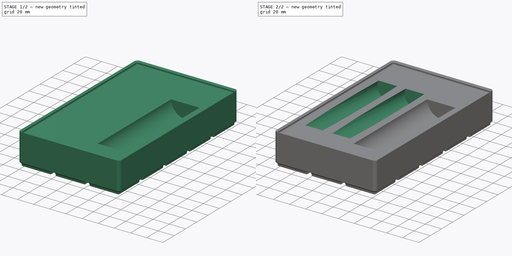
[diagram: build sequence overview — one tinted view per stage of 2, left to right]
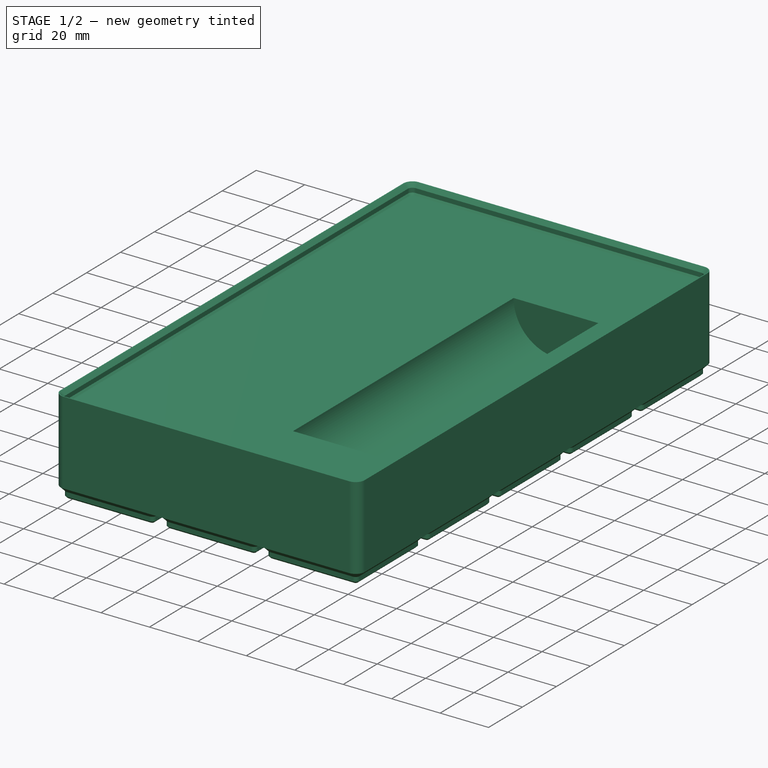
[diagram: stage 1 of 2 — iso view after this stage's code; geometry added in this stage tinted green]
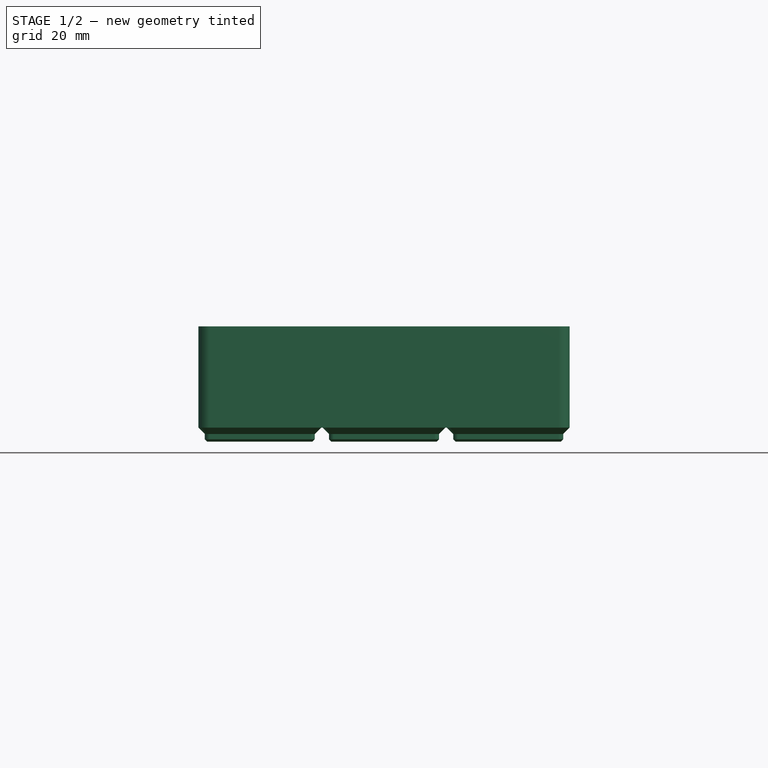
[diagram: stage 1 of 2 — front view after this stage's code; geometry added in this stage tinted green]
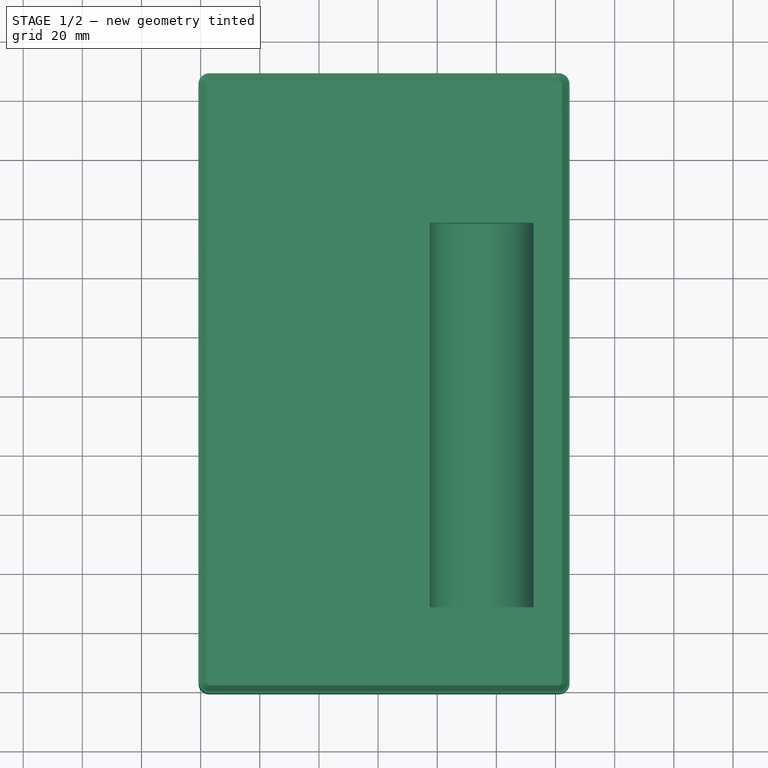
[diagram: stage 1 of 2 — top view after this stage's code; geometry added in this stage tinted green]
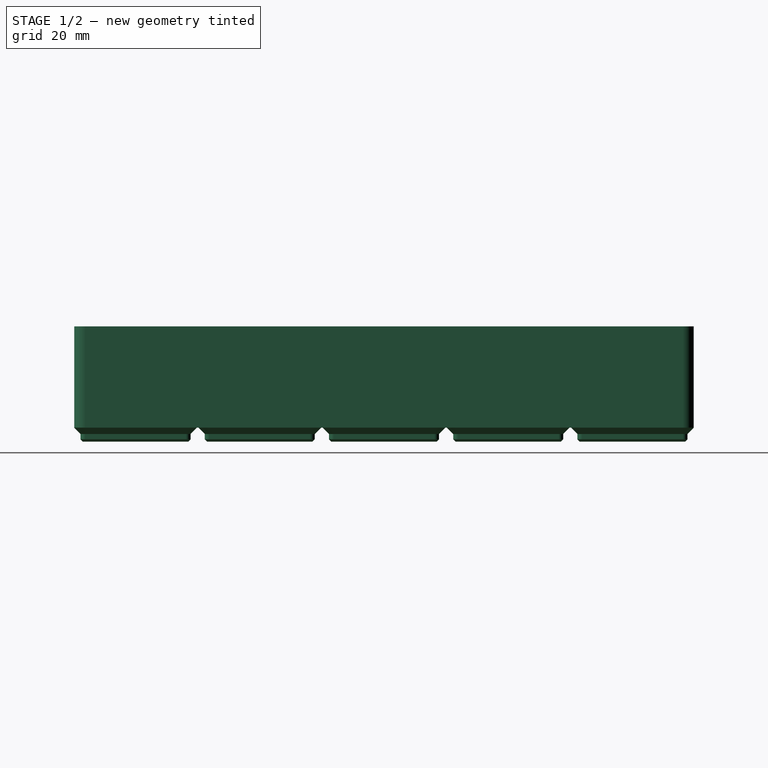
[diagram: stage 1 of 2 — right view after this stage's code; geometry added in this stage tinted green]
FCSTD DOCUMENT  (FreeCAD 0.21R33771 (Git))
Label: MR_Klein_Nut_Driver_SAE_IMPERIAL
License: All rights reserved
LicenseURL: http://en.wikipedia.org/wiki/All_rights_reserved
objects: PartDesign::Plane×2, Sketcher::SketchObject×2, PartDesign::Pocket×2, PartDesign::FeaturePython×1, PartDesign::Body×1, App::Part×1
note: 10 computed .brp shape members not serialized (recipe doc carries the construction recipe); baked Part::Feature solids carry a one-line shape summary decoded from their .brp

FEATURE [PartDesign::FeaturePython] BinBlank  # WARN: FeaturePython — macro-defined, semantics opaque (R4)
  BaseProfileBottomChamfer = 0.8
  BaseProfileHeight = 4.75
  BaseProfileTopChamfer = 2.15
  BaseProfileVerticalSection = 1.8
  BinBottomRadius = 0.8
  BinOuterRadius = 3.75
  BinUnit = 41.5
  BinVerticalRadius = 1.6
  CustomHeight = 42
  GridSize = 42
  HeightUnitValue = 7
  HeightUnits = 5
  MagnetHoleDepth = 2.4
  MagnetHoleDiameter = 6.5
  MagnetHoleDistanceFromEdge = 8
  MagnetHoles = false
  NonStandardHeight = false
  ScrewHoleDepth = 6
  ScrewHoleDiameter = 3
  ScrewHoles = false
  SequentialBridgingLayerHeight = 0.2
  StackingLip = true
  StackingLipBottomChamfer = 0.7
  StackingLipTopChamfer = 1.5
  StackingLipTopLedge = 0.4
  StackingLipVerticalSection = 1.8
  Tolerance = 0.25
  TotalHeight = 35
  WallThickness = 1
  version = 0.5.0
  xGridUnits = 3
  xTotalWidth = 125.5
  yGridUnits = 5
  yTotalWidth = 209.5
FEATURE [PartDesign::Plane] DatumPlane
  AttachmentOffset = pos=(0,0,-29) rot=(0,0,1;0rad)
  Length = 60
  MapMode = 5
  Placement = pos=(0,8.25,-6.4e-15) rot=(1,0,0;1.5708rad)
  ResizeMode = 0
  Support = -> [BinBlank]
  Width = 60
FEATURE [Sketcher::SketchObject] Sketch
  FullyConstrained = true
  MapMode = 5
  Placement = pos=(0,8.25,-6.4e-15) rot=(1,0,0;1.5708rad)
  Support = -> [DatumPlane]
  sketch-geometry (1):
    g0: Circle CenterX=75 CenterY=0 CenterZ=0 NormalX=0 NormalY=0 NormalZ=1 AngleXU=0 Radius=17.5
  constraints (3):
    c: PointOnObject(g0,g-1)
    c: Diameter(g0) = 35
    c: DistanceX(g-1,g0) = 75
FEATURE [PartDesign::Pocket] Pocket
  BaseFeature = -> BinBlank
  Direction = (0,1,-2e-16)
  Length = 130
  Length2 = 5
  Profile = -> Sketch
  ReferenceAxis = -> Sketch [N_Axis]
  Type = 0
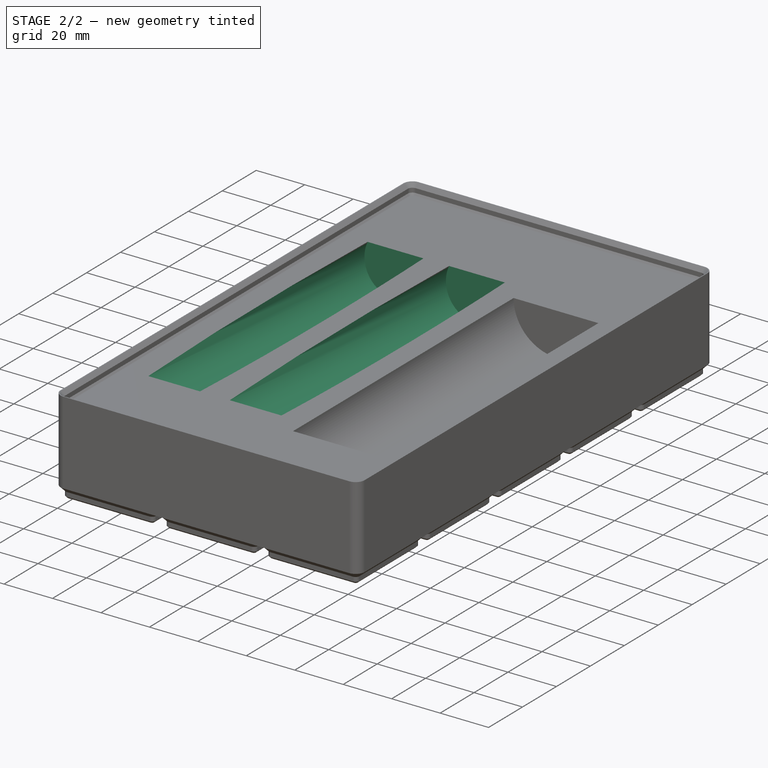
[diagram: stage 2 of 2 — iso view after this stage's code; geometry added in this stage tinted green]
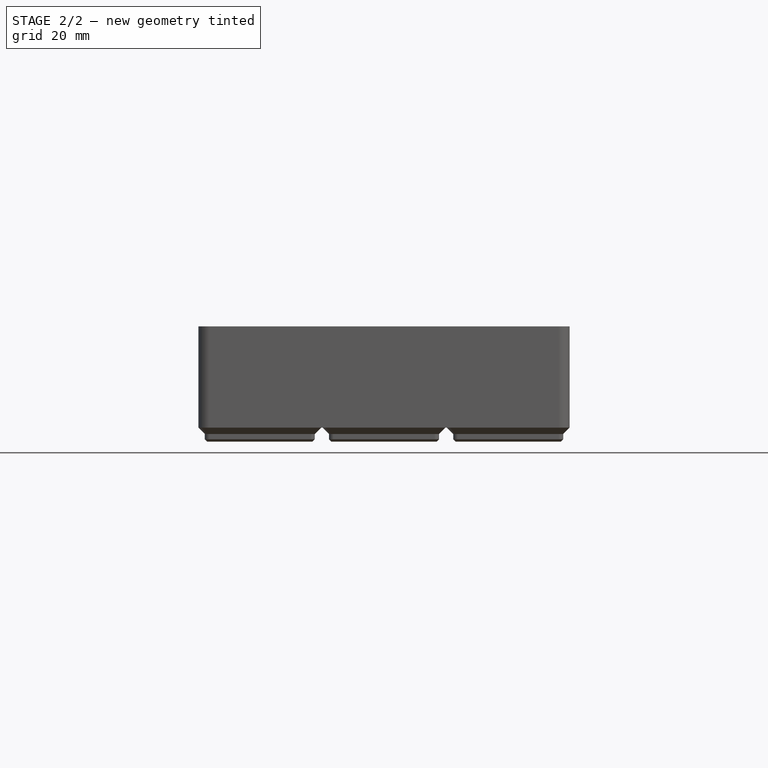
[diagram: stage 2 of 2 — front view after this stage's code; geometry added in this stage tinted green]
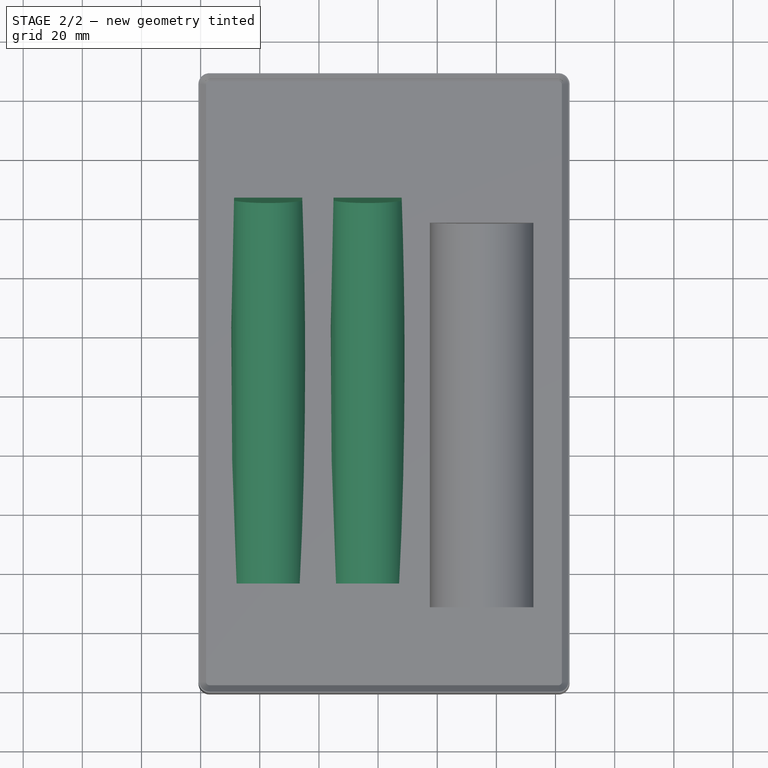
[diagram: stage 2 of 2 — top view after this stage's code; geometry added in this stage tinted green]
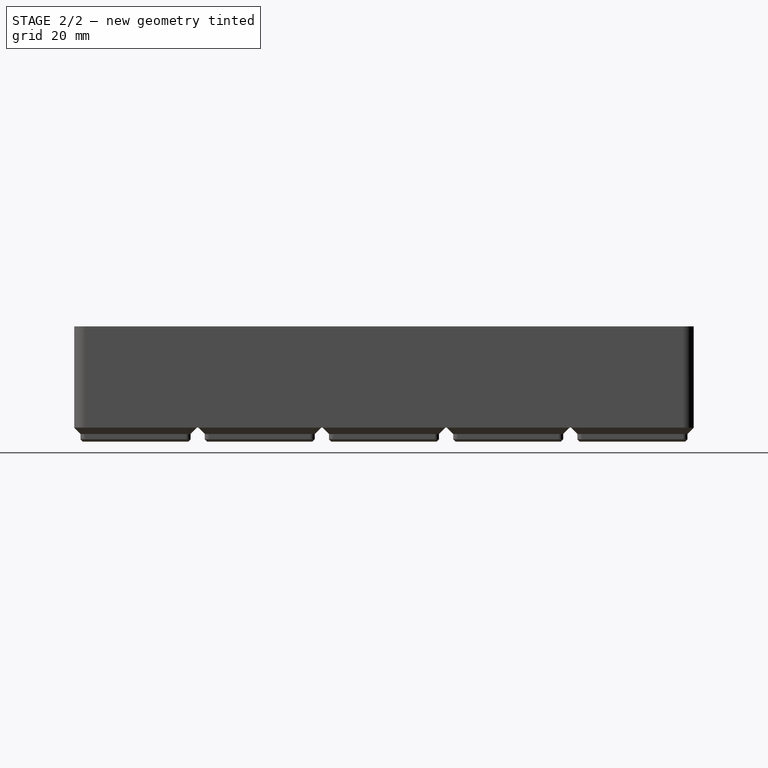
[diagram: stage 2 of 2 — right view after this stage's code; geometry added in this stage tinted green]
FEATURE [PartDesign::Plane] DatumPlane001
  AttachmentOffset = pos=(0,0,-37) rot=(-1,0,0;0.087266rad)
  Length = 60.4084
  MapMode = 5
  Placement = pos=(0,16.25,-8.2e-15) rot=(1,0,0;1.48353rad)
  ResizeMode = 0
  Support = -> [Pocket]
  Width = 64.5759
FEATURE [Sketcher::SketchObject] Sketch001
  FullyConstrained = false
  MapMode = 5
  Placement = pos=(0,16.25,-8.2e-15) rot=(1,0,0;1.48353rad)
  Support = -> [DatumPlane001]
  sketch-geometry (2):
    g0: Circle CenterX=36.4509 CenterY=6.52134 CenterZ=0 NormalX=0 NormalY=0 NormalZ=1 AngleXU=0 Radius=12.5
    g1: Circle CenterX=2.82816 CenterY=6.52134 CenterZ=0 NormalX=0 NormalY=0 NormalZ=1 AngleXU=0 Radius=12.5
  constraints (3):
    c: Diameter(g0) = 25
    c: Horizontal(g0,g1)
    c: Equal(g0,g1)
FEATURE [PartDesign::Pocket] Pocket001
  BaseFeature = -> Pocket
  Direction = (0,0.996195,-0.0871557)
  Length = 130
  Length2 = 5
  Profile = -> Sketch001
  ReferenceAxis = -> Sketch001 [N_Axis]
  Type = 0
FEATURE [PartDesign::Body] Body
  Group = -> [BinBlank,DatumPlane,Sketch,Pocket,DatumPlane001,Sketch001,Pocket001]
  Origin = -> Origin001
  Tip = -> Pocket001
FEATURE [App::Part] Part
  Group = -> [Body]
  Origin = -> Origin
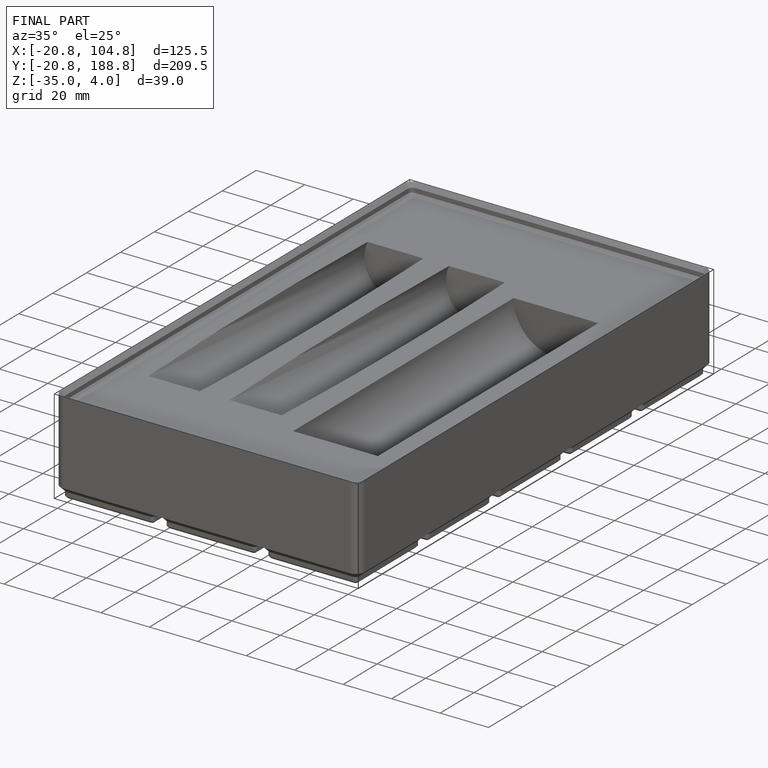
[diagram: finished part — iso view with bounding-box wireframe]
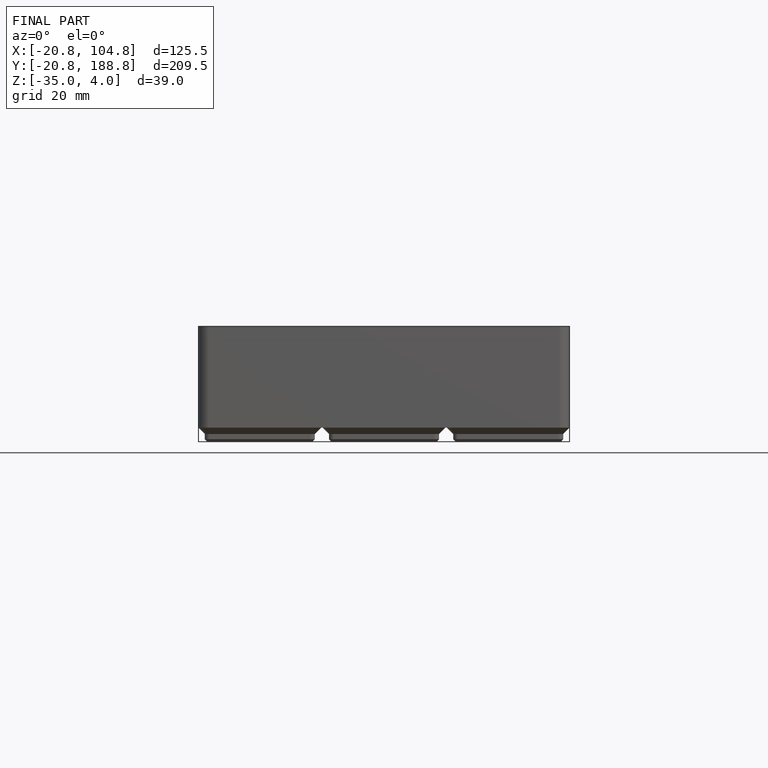
[diagram: finished part — front view with bounding-box wireframe]
